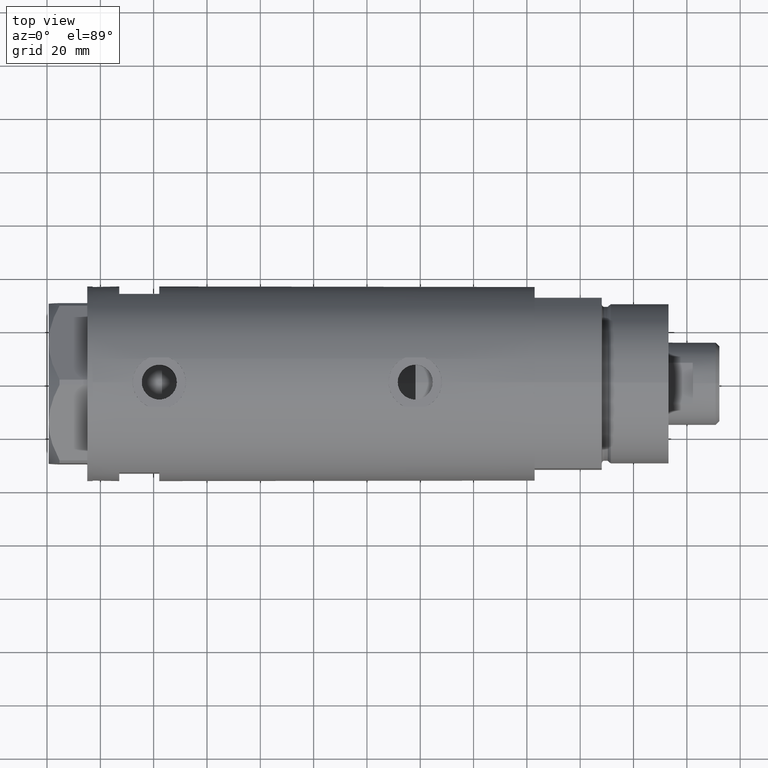
[diagram: clean part render]
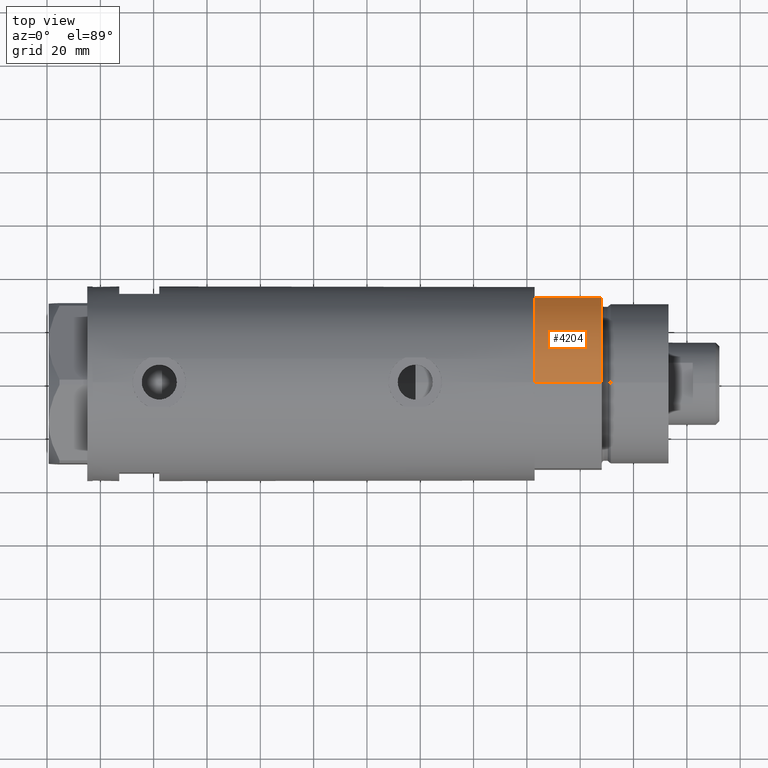
[diagram: same view with one face highlighted and labeled with its STEP entity id]
A machine part, top view. The second image highlights one B-rep face of the part: STEP entity #4204.
In plain terms, the highlighted cylindrical surface (partial cylindrical patch) has radius 36.5 mm, axis along (-1, -0, 0).
Its self-contained STEP definition (entity closure, byte-faithful):
#65 = CIRCLE ( 'NONE', #2047, 36.50000000000000000 ) ;
#134 = VERTEX_POINT ( 'NONE', #3226 ) ;
#526 = CARTESIAN_POINT ( 'NONE',  ( 0.000000000000000000, 0.000000000000000000, 25.19999999999999929 ) ) ;
#612 = DIRECTION ( 'NONE',  ( 0.000000000000000000, 0.000000000000000000, 1.000000000000000000 ) ) ;
#625 = EDGE_CURVE ( 'NONE', #134, #2809, #2566, .T. ) ;
#690 = CARTESIAN_POINT ( 'NONE',  ( -17.55704986607943141, 32.00000000000000000, 0.000000000000000000 ) ) ;
#692 = CARTESIAN_POINT ( 'NONE',  ( -17.55704986607943496, 32.00000000000000000, 25.19999999999999929 ) ) ;
#797 = VECTOR ( 'NONE', #1734, 1000.000000000000000 ) ;
#931 = DIRECTION ( 'NONE',  ( 0.000000000000000000, 0.000000000000000000, 1.000000000000000000 ) ) ;
#1006 = CARTESIAN_POINT ( 'NONE',  ( -36.50000000000000000, 0.000000000000000000, 0.000000000000000000 ) ) ;
#1023 = DIRECTION ( 'NONE',  ( 1.000000000000000000, 0.000000000000000000, 0.000000000000000000 ) ) ;
#1053 = ORIENTED_EDGE ( 'NONE', *, *, #3031, .T. ) ;
#1056 = EDGE_CURVE ( 'NONE', #2139, #2710, #3553, .T. ) ;
#1149 = ORIENTED_EDGE ( 'NONE', *, *, #625, .F. ) ;
#1193 = ORIENTED_EDGE ( 'NONE', *, *, #3321, .F. ) ;
#1340 = CARTESIAN_POINT ( 'NONE',  ( 0.000000000000000000, 0.000000000000000000, 0.000000000000000000 ) ) ;
#1577 = AXIS2_PLACEMENT_3D ( 'NONE', #526, #931, #3157 ) ;
#1604 = EDGE_LOOP ( 'NONE', ( #1841, #1193, #1149, #1053 ) ) ;
#1734 = DIRECTION ( 'NONE',  ( -0.000000000000000000, -0.000000000000000000, -1.000000000000000000 ) ) ;
#1841 = ORIENTED_EDGE ( 'NONE', *, *, #1056, .F. ) ;
#1905 = AXIS2_PLACEMENT_3D ( 'NONE', #4301, #3931, #2565 ) ;
#2047 = AXIS2_PLACEMENT_3D ( 'NONE', #1340, #612, #1023 ) ;
#2052 = CIRCLE ( 'NONE', #1577, 36.50000000000000000 ) ;
#2061 = CARTESIAN_POINT ( 'NONE',  ( -36.50000000000000000, 0.000000000000000000, 25.19999999999999929 ) ) ;
#2139 = VERTEX_POINT ( 'NONE', #3154 ) ;
#2565 = DIRECTION ( 'NONE',  ( -1.000000000000000000, 0.000000000000000000, 0.000000000000000000 ) ) ;
#2566 = LINE ( 'NONE', #690, #3961 ) ;
#2710 = VERTEX_POINT ( 'NONE', #1006 ) ;
#2809 = VERTEX_POINT ( 'NONE', #692 ) ;
#3031 = EDGE_CURVE ( 'NONE', #134, #2710, #65, .T. ) ;
#3154 = CARTESIAN_POINT ( 'NONE',  ( -36.50000000000000000, 0.000000000000000000, 25.19999999999999929 ) ) ;
#3157 = DIRECTION ( 'NONE',  ( 1.000000000000000000, 0.000000000000000000, 0.000000000000000000 ) ) ;
#3226 = CARTESIAN_POINT ( 'NONE',  ( -17.55704986607943141, 32.00000000000000000, 0.000000000000000000 ) ) ;
#3321 = EDGE_CURVE ( 'NONE', #2809, #2139, #2052, .T. ) ;
#3553 = LINE ( 'NONE', #2061, #797 ) ;
#3647 = CYLINDRICAL_SURFACE ( 'NONE', #1905, 36.50000000000000000 ) ;
#3669 = FACE_OUTER_BOUND ( 'NONE', #1604, .T. ) ;
#3931 = DIRECTION ( 'NONE',  ( -0.000000000000000000, -0.000000000000000000, -1.000000000000000000 ) ) ;
#3961 = VECTOR ( 'NONE', #4722, 1000.000000000000000 ) ;
#4204 = ADVANCED_FACE ( 'NONE', ( #3669 ), #3647, .T. ) ;
#4301 = CARTESIAN_POINT ( 'NONE',  ( 0.000000000000000000, 0.000000000000000000, 25.19999999999999929 ) ) ;
#4722 = DIRECTION ( 'NONE',  ( -0.000000000000000000, -0.000000000000000000, 1.000000000000000000 ) ) ;